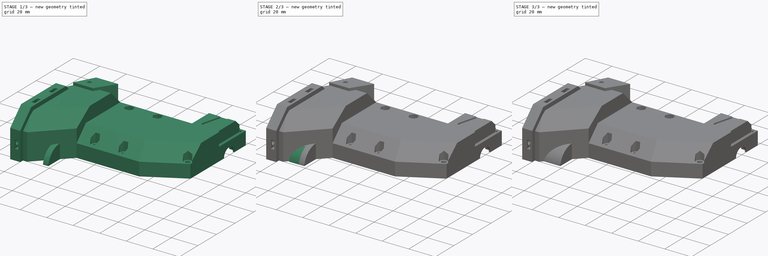
[diagram: build sequence overview — one tinted view per stage of 3, left to right]
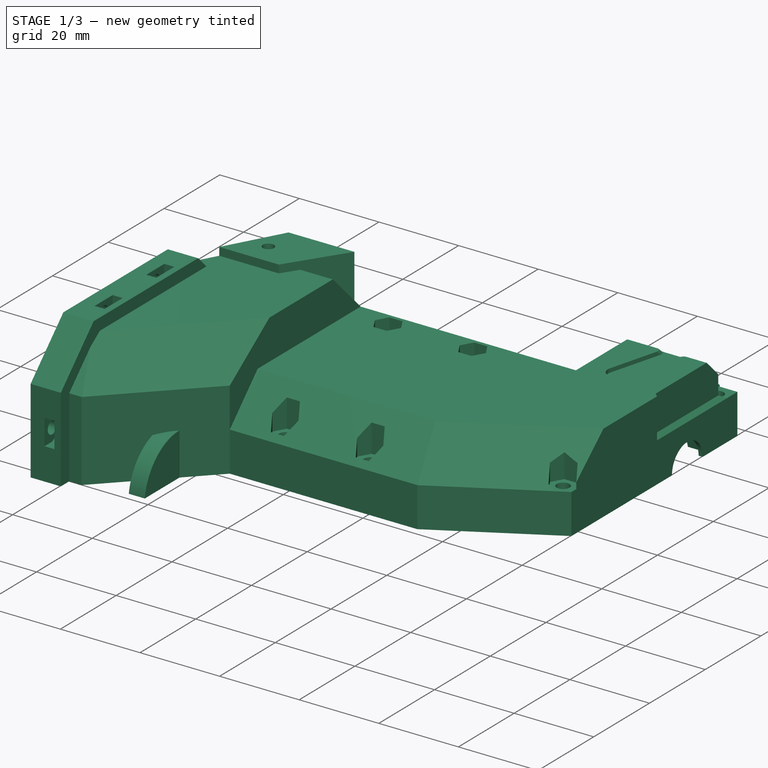
[diagram: stage 1 of 3 — iso view after this stage's code; geometry added in this stage tinted green]
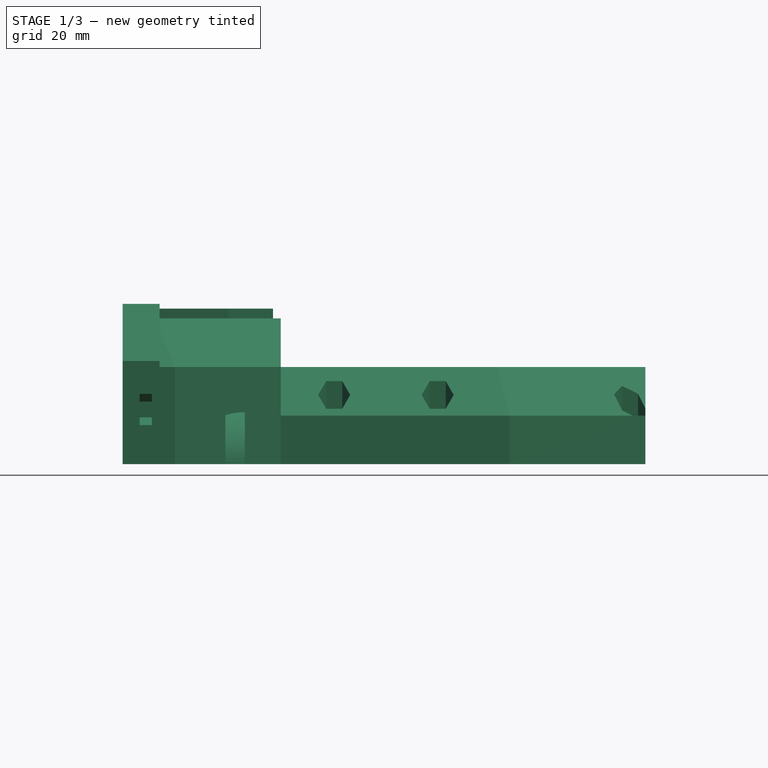
[diagram: stage 1 of 3 — front view after this stage's code; geometry added in this stage tinted green]
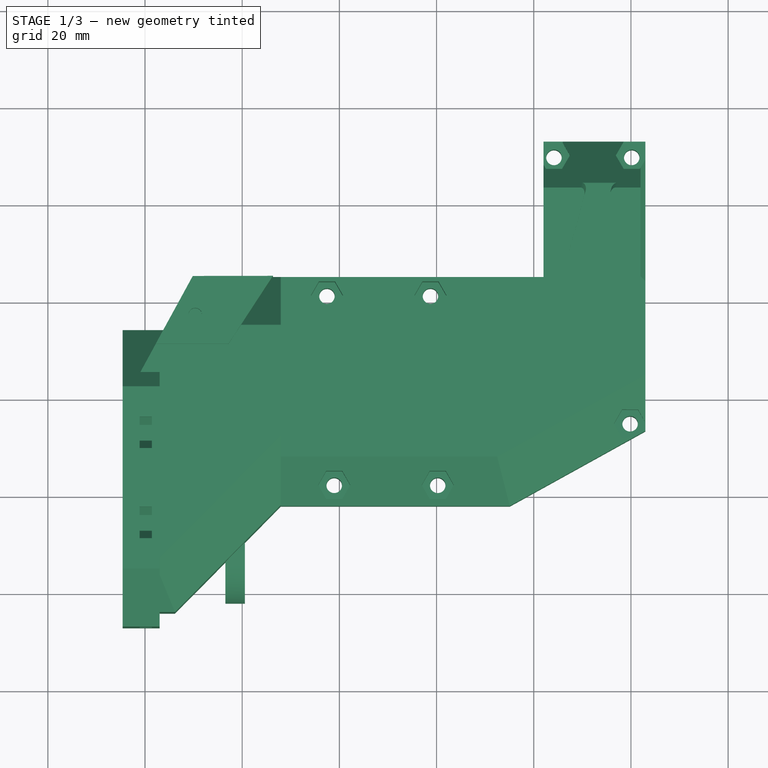
[diagram: stage 1 of 3 — top view after this stage's code; geometry added in this stage tinted green]
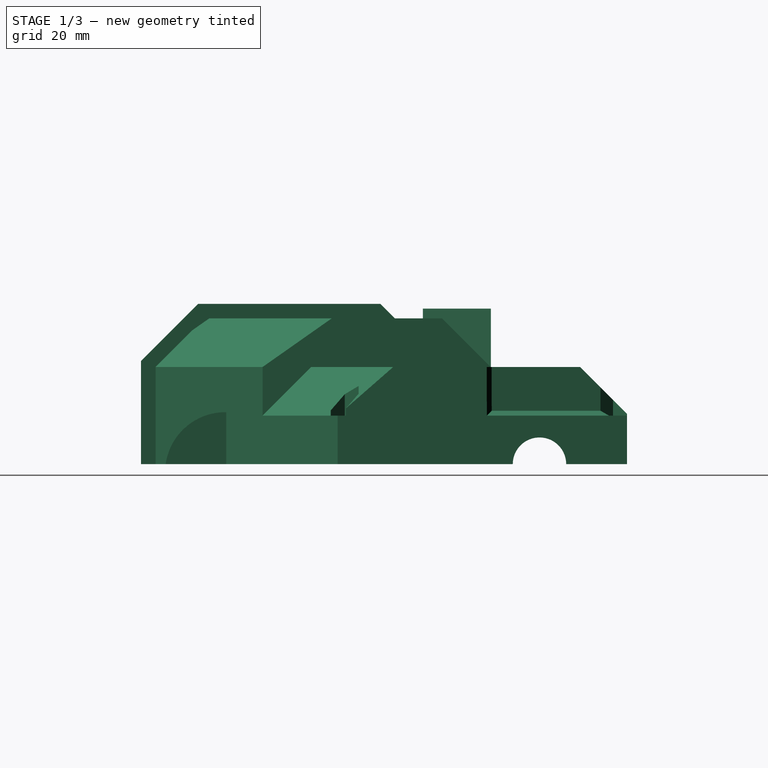
[diagram: stage 1 of 3 — right view after this stage's code; geometry added in this stage tinted green]
FCSTD DOCUMENT  (FreeCAD 0.20R29177 (Git))
Label: housingRightBrushless
License: All rights reserved
LicenseURL: http://en.wikipedia.org/wiki/All_rights_reserved
objects: Sketcher::SketchObject×4, PartDesign::Pad×3, Part::Feature×1, PartDesign::FeatureBase×1, Spreadsheet::Sheet×1, PartDesign::Pocket×1, PartDesign::Body×1
note: 15 computed .brp shape members not serialized (recipe doc carries the construction recipe); baked Part::Feature solids carry a one-line shape summary decoded from their .brp

FEATURE [Part::Feature] Gearbox_Housing___right001001_solid  label="Gearbox_Housing___right001001 (Solid)"
  shape: bbox 107.6 x 100 x 33 mm, 2080 faces (baked)
FEATURE [PartDesign::FeatureBase] BaseFeature
  BaseFeature = -> Gearbox_Housing___right001001_solid
FEATURE [Sketcher::SketchObject] Sketch
  ExternalGeometry = -> [BaseFeature]
  FullyConstrained = false
  MapMode = 5
  Placement = pos=(96.5377,0,0) rot=(0.57735,-0.57735,-0.57735;2.0944rad)
  Support = -> [BaseFeature]
  expr: .Constraints.sockerR = Spreadsheet.socketR
  expr: .Constraints.socketWallR = Spreadsheet.socketWallR
  expr: .Constraints.socketY = Spreadsheet.newSocketY
  expr: Constraints[0] = Spreadsheet.engineRotorR
  expr: Constraints[1] = Spreadsheet.engineHoleX
  expr: Constraints[2] = Spreadsheet.engineHoleY
  expr: Constraints[4] = Spreadsheet.newSocketX
  sketch-geometry (5):
    g0: ArcOfCircle CenterX=-55.3472 CenterY=7.31 CenterZ=0 NormalX=0 NormalY=0 NormalZ=1 AngleXU=0 Radius=18.5 StartAngle=5.87697 EndAngle=6.36562
    g1: ArcOfCircle CenterX=-30.3672 CenterY=-1.7 CenterZ=0 NormalX=0 NormalY=0 NormalZ=1 AngleXU=0 Radius=7.55 StartAngle=0.227113 EndAngle=2.91448
    g2: ArcOfCircle CenterX=-30.3672 CenterY=-1.7 CenterZ=0 NormalX=0 NormalY=0 NormalZ=1 AngleXU=0 Radius=12.4 StartAngle=0.13753 EndAngle=2.12662
    g3: LineSegment StartX=-18.0842 StartY=1.11e-14 StartZ=0 EndX=-23.011 EndY=9.5e-15 EndZ=0
    g4: LineSegment StartX=-37.7233 StartY=4.6e-15 StartZ=0 EndX=-38.3526 EndY=4.4e-15 EndZ=0
  constraints (15):
    c: Radius(g0) = 18.5
    c: DistanceX(g-4,g0) = 18.67
    c: DistanceY(g0,g-3) = 25.69
    c: Radius(g1) = 7.55  'sockerR'
    c: DistanceX(g-4,g1) = 43.65
    c: DistanceY(g1,g-3) = 34.7  'socketY'
    c: Coincident(g2,g1)
    c: Radius(g2) = 12.4  'socketWallR'
    c: Parallel(g3,g-1)
    c: PointOnObject(g1,g3)
    c: Coincident(g2,g3)
    c: Coincident(g0,g2)
    c: Coincident(g4,g0)
    c: Coincident(g3,g1)
    c: PointOnObject(g4,g1)
FEATURE [Spreadsheet::Sheet] Spreadsheet
  cells = A2=newSocketY; B2(newSocketY)=34.7; A3=newSocketX; B3(newSocketX)=43.65; A4=engineHoleX; B4(engineHoleX)=18.67; A5=engineHoleY; B5(engineHoleY)=25.69; A6=socketR; B6(socketR)=7.55; A7=socketWallR; B7(socketWallR)=12.4; A8=socketHeight; B8(socketHeight)=7.5; A9=engineRotorR; B9(engineRotorR)=18.5
FEATURE [Sketcher::SketchObject] Sketch001
  ExternalGeometry = -> [BaseFeature]
  FullyConstrained = false
  MapMode = 5
  Placement = pos=(96.5377,0,0) rot=(0.57735,-0.57735,-0.57735;2.0944rad)
  Support = -> [BaseFeature]
  expr: Constraints[0] = Spreadsheet.socketWallR
  expr: Constraints[1] = Spreadsheet.newSocketX
  expr: Constraints[2] = Spreadsheet.newSocketY
  sketch-geometry (3):
    g0: ArcOfCircle CenterX=-30.3672 CenterY=-1.7 CenterZ=0 NormalX=0 NormalY=0 NormalZ=1 AngleXU=0 Radius=12.4 StartAngle=0.13753 EndAngle=1.95228
    g1: LineSegment StartX=-18.0842 StartY=1.09e-14 StartZ=0 EndX=-34.9837 EndY=1.17e-14 EndZ=0
    g2: LineSegment StartX=-34.9837 StartY=1.17e-14 StartZ=0 EndX=-34.9837 EndY=9.8086 EndZ=0
  constraints (8):
    c: Radius(g0) = 12.4
    c: DistanceX(g-3,g0) = 43.65
    c: DistanceY(g0,g-4) = 34.7
    c: DistanceY(g1,g-5) = 0
    c: Coincident(g0,g1)
    c: Vertical(g2)
    c: Coincident(g0,g2)
    c: Coincident(g1,g2)
FEATURE [PartDesign::Pad] Pad
  BaseFeature = -> BaseFeature
  Direction = (-1,0,0)
  Length = 4
  Length2 = 10
  Profile = -> Sketch001
  ReferenceAxis = -> Sketch001 [N_Axis]
  Reversed = true
  Type = 0
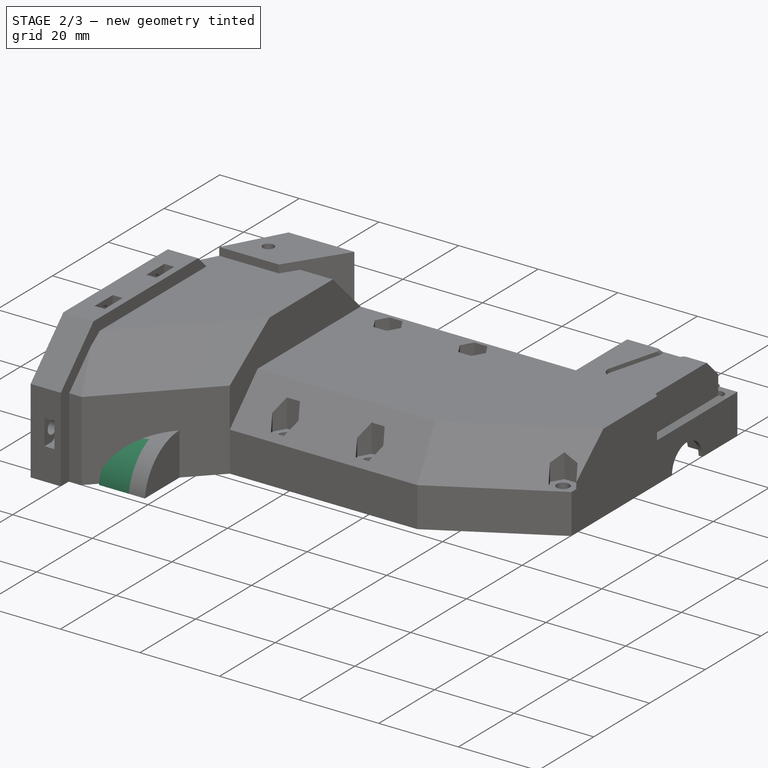
[diagram: stage 2 of 3 — iso view after this stage's code; geometry added in this stage tinted green]
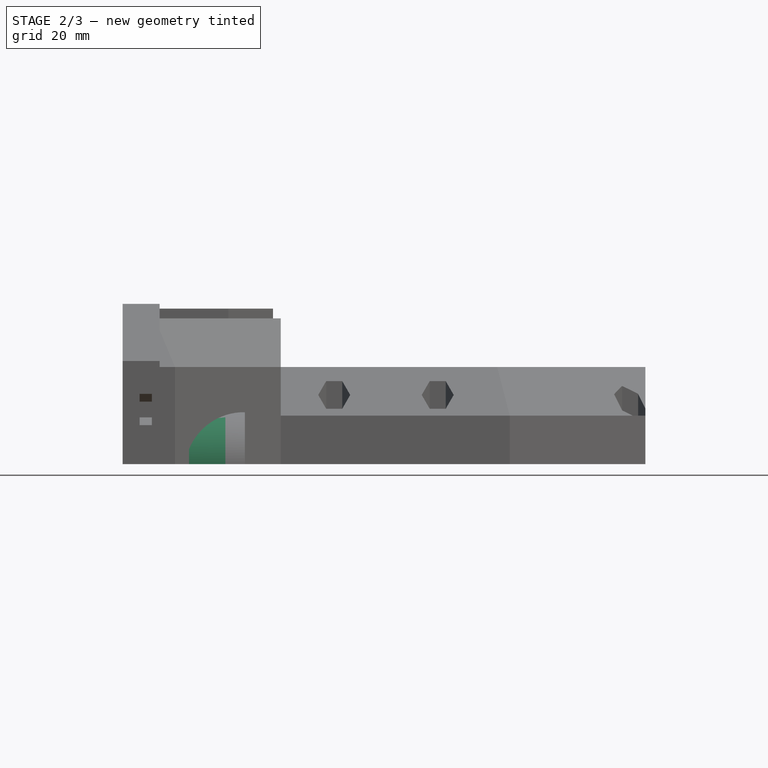
[diagram: stage 2 of 3 — front view after this stage's code; geometry added in this stage tinted green]
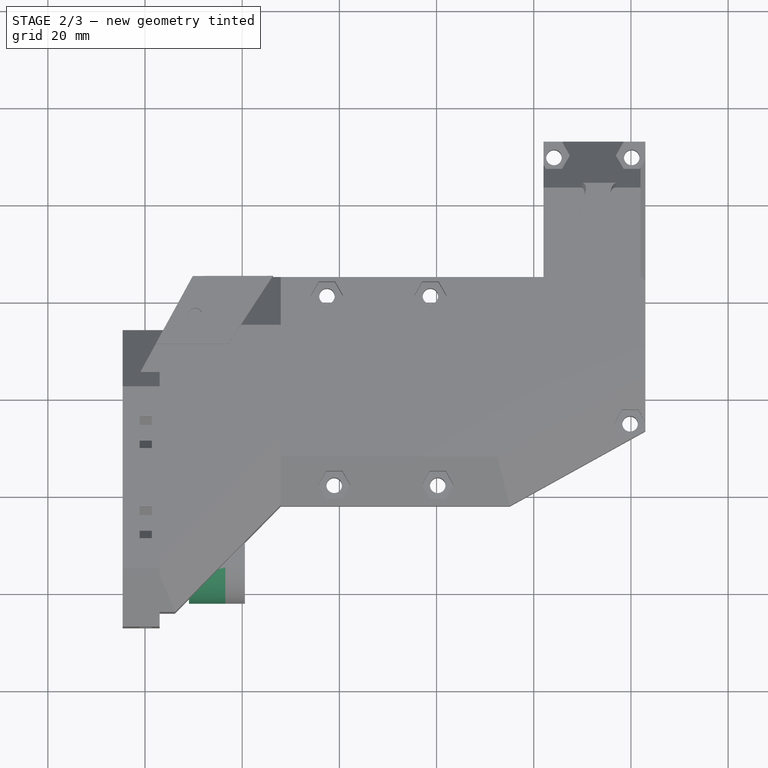
[diagram: stage 2 of 3 — top view after this stage's code; geometry added in this stage tinted green]
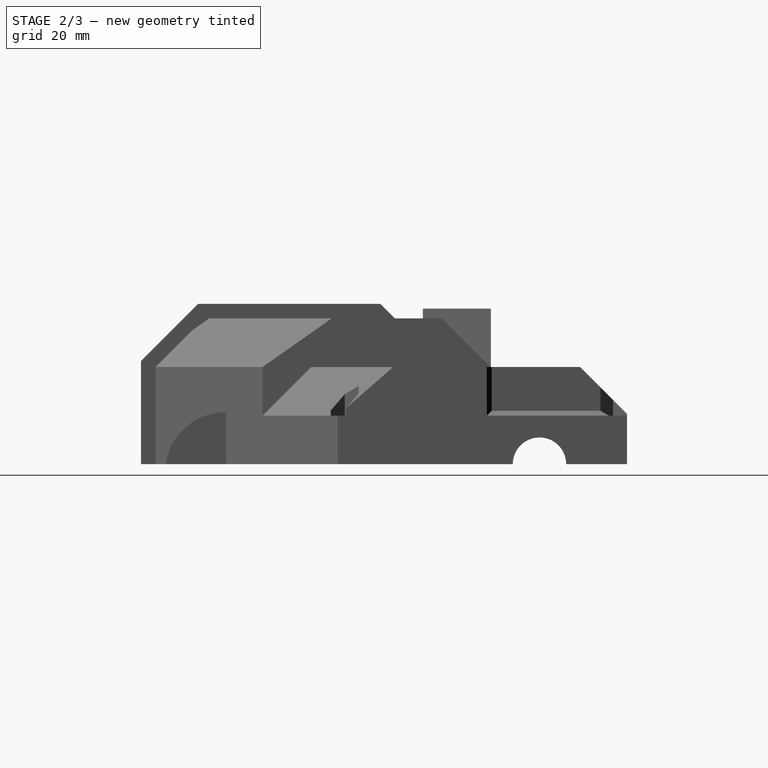
[diagram: stage 2 of 3 — right view after this stage's code; geometry added in this stage tinted green]
FEATURE [PartDesign::Pad] Pad001
  BaseFeature = -> Pad
  Direction = (-1,0,0)
  Length = 7.5
  Length2 = 10
  Profile = -> Sketch
  ReferenceAxis = -> Sketch [N_Axis]
  Type = 0
  expr: Length = Spreadsheet.socketHeight
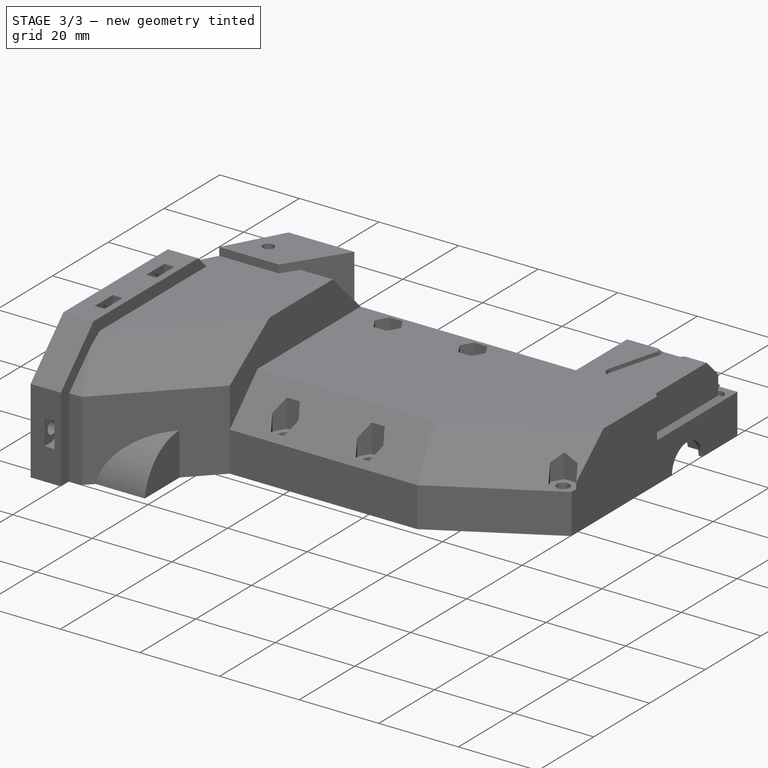
[diagram: stage 3 of 3 — iso view after this stage's code; geometry added in this stage tinted green]
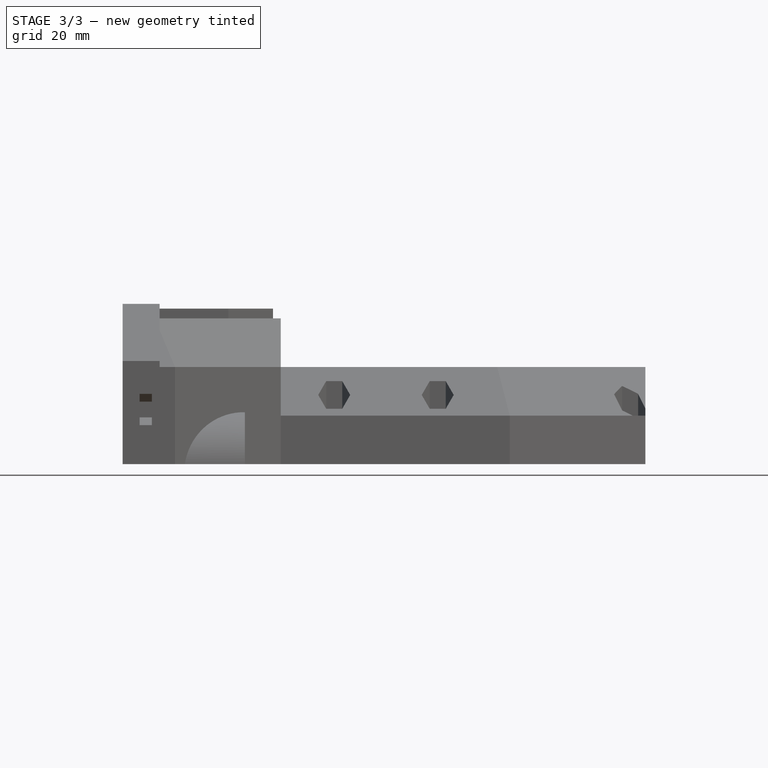
[diagram: stage 3 of 3 — front view after this stage's code; geometry added in this stage tinted green]
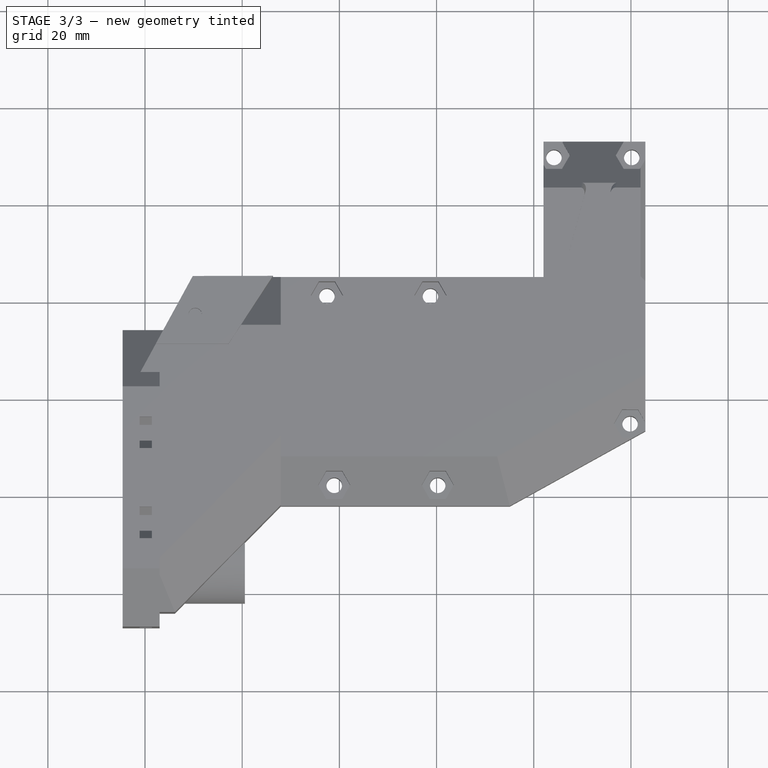
[diagram: stage 3 of 3 — top view after this stage's code; geometry added in this stage tinted green]
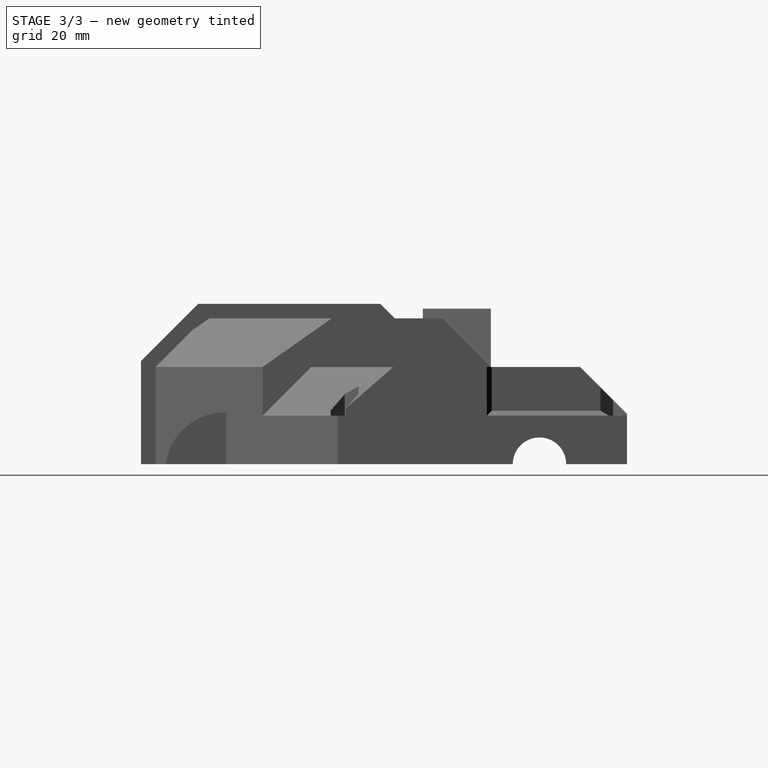
[diagram: stage 3 of 3 — right view after this stage's code; geometry added in this stage tinted green]
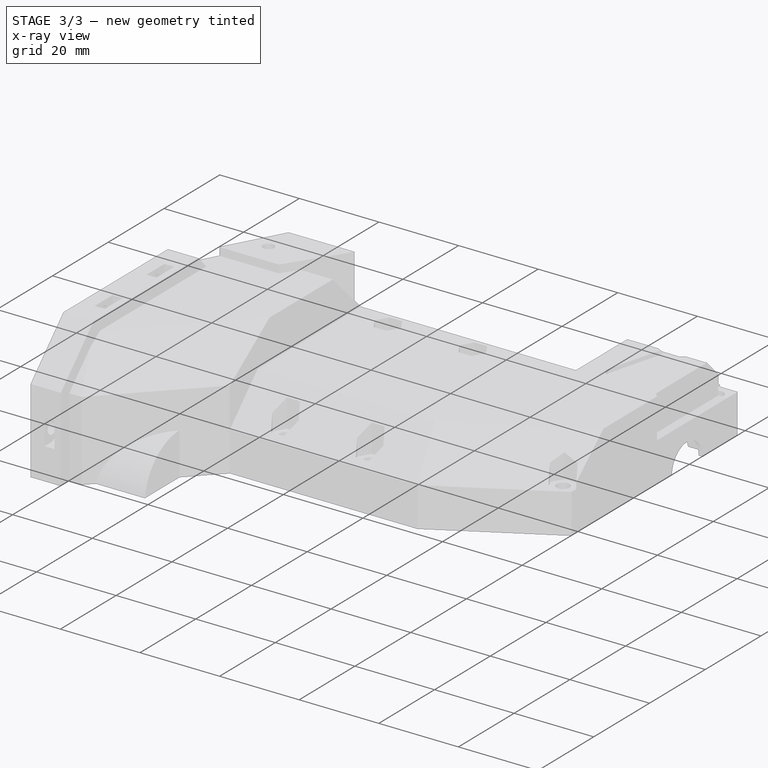
[diagram: stage 3 of 3 — x-ray composite at the iso view; earlier geometry ghosted, this stage's added geometry solid]
FEATURE [Sketcher::SketchObject] Sketch003
  ExternalGeometry = -> [Pad001]
  FullyConstrained = true
  MapMode = 5
  Placement = pos=(96.5377,0,0) rot=(0.57735,-0.57735,-0.57735;2.0944rad)
  Support = -> [Pad001]
  expr: Constraints[0] = Spreadsheet.socketR
  expr: Constraints[1] = Spreadsheet.newSocketY
  expr: Constraints[2] = Spreadsheet.newSocketX
  sketch-geometry (1):
    g0: Circle CenterX=-30.3672 CenterY=-1.7 CenterZ=0 NormalX=0 NormalY=0 NormalZ=1 AngleXU=0 Radius=7.55
  constraints (3):
    c: Radius(g0) = 7.55
    c: DistanceY(g0,g-4) = 34.7
    c: DistanceX(g-3,g0) = 43.65
FEATURE [PartDesign::Pocket] Pocket
  BaseFeature = -> Pad001
  Direction = (1,0,0)
  Length = 15
  Length2 = 5
  Profile = -> Sketch003
  ReferenceAxis = -> Sketch003 [N_Axis]
  Reversed = true
  Type = 0
FEATURE [Sketcher::SketchObject] Sketch004
  ExternalGeometry = -> [Pocket]
  FullyConstrained = true
  MapMode = 5
  Placement = pos=(89.0377,0,0) rot=(0.57735,-0.57735,-0.57735;2.0944rad)
  Support = -> [Pocket]
  expr: Constraints[0] = Spreadsheet.socketWallR
  expr: Constraints[1] = Spreadsheet.newSocketX
  sketch-geometry (3):
    g0: ArcOfCircle CenterX=-30.3672 CenterY=-1.7 CenterZ=0 NormalX=0 NormalY=0 NormalZ=1 AngleXU=0 Radius=12.4 StartAngle=0.13753 EndAngle=0.395458
    g1: LineSegment StartX=-18.9242 StartY=3.07687 StartZ=0 EndX=-18.9242 EndY=1.07e-14 EndZ=0
    g2: LineSegment StartX=-18.9242 StartY=1.07e-14 StartZ=0 EndX=-18.0842 EndY=1.07e-14 EndZ=0
  constraints (8):
    c: Radius(g0) = 12.4
    c: DistanceX(g-3,g0) = 43.65
    c: Coincident(g1,g-5)
    c: Coincident(g1,g-5)
    c: Coincident(g2,g1)
    c: Horizontal(g2)
    c: Coincident(g0,g1)
    c: Coincident(g0,g2)
FEATURE [PartDesign::Pad] Pad002
  BaseFeature = -> Pocket
  Direction = (-1,0,0)
  Length = 10
  Length2 = 10
  Profile = -> Sketch004
  ReferenceAxis = -> Sketch004 [N_Axis]
  Type = 0
FEATURE [PartDesign::Body] Body
  BaseFeature = -> Gearbox_Housing___right001001_solid
  Group = -> [BaseFeature,Sketch,Sketch001,Pad,Pad001,Sketch003,Pocket,Sketch004,Pad002]
  Origin = -> Origin
  Tip = -> Pad002
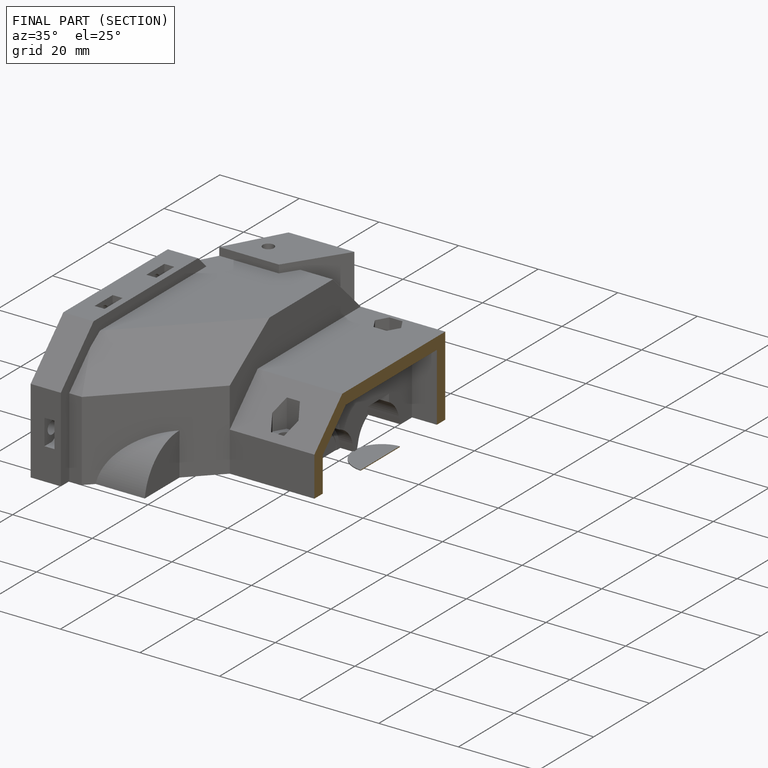
[diagram: finished part — half-section view (interior)]
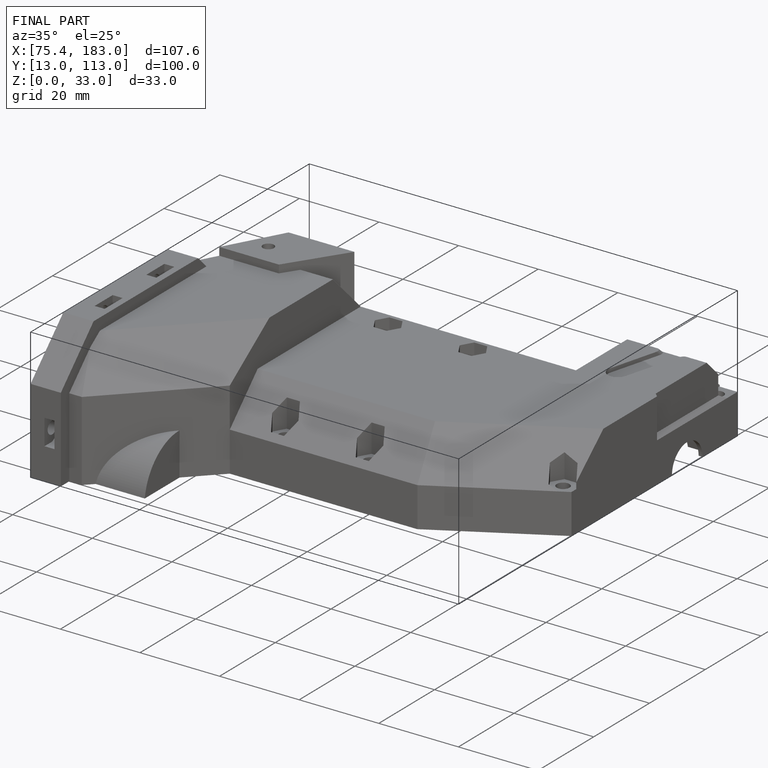
[diagram: finished part — iso view with bounding-box wireframe]
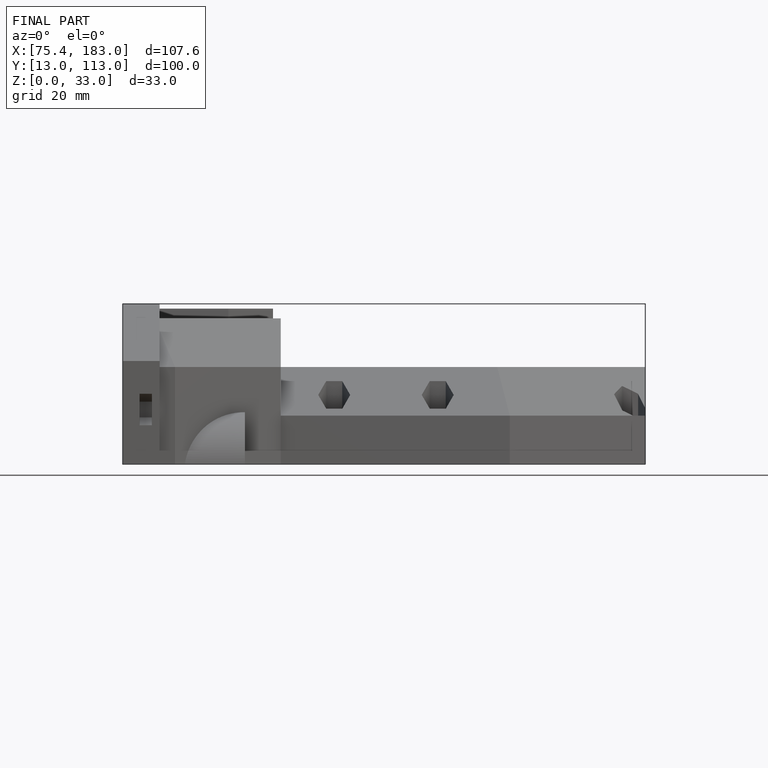
[diagram: finished part — front view with bounding-box wireframe]
